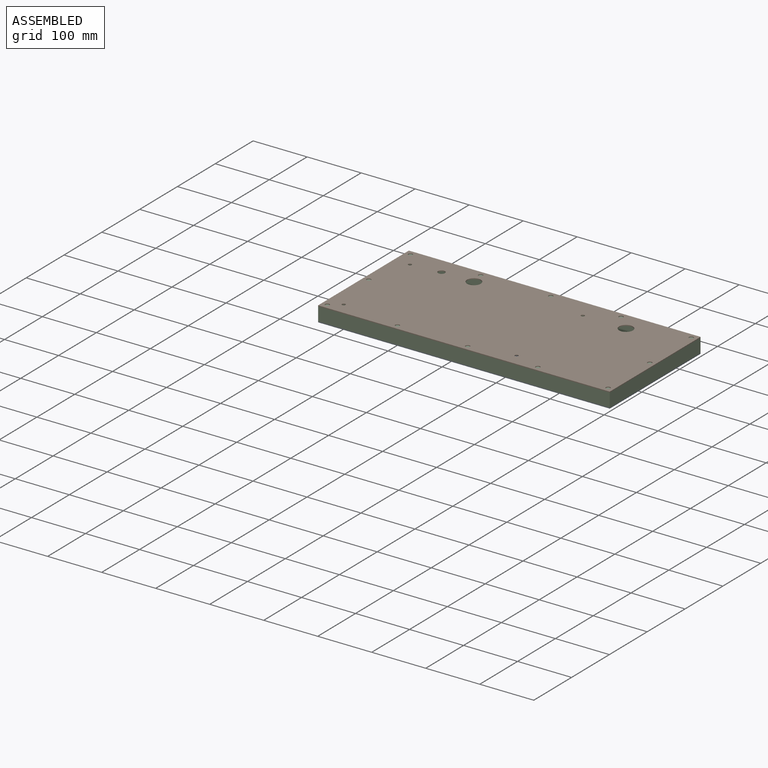
[diagram: assembled view]
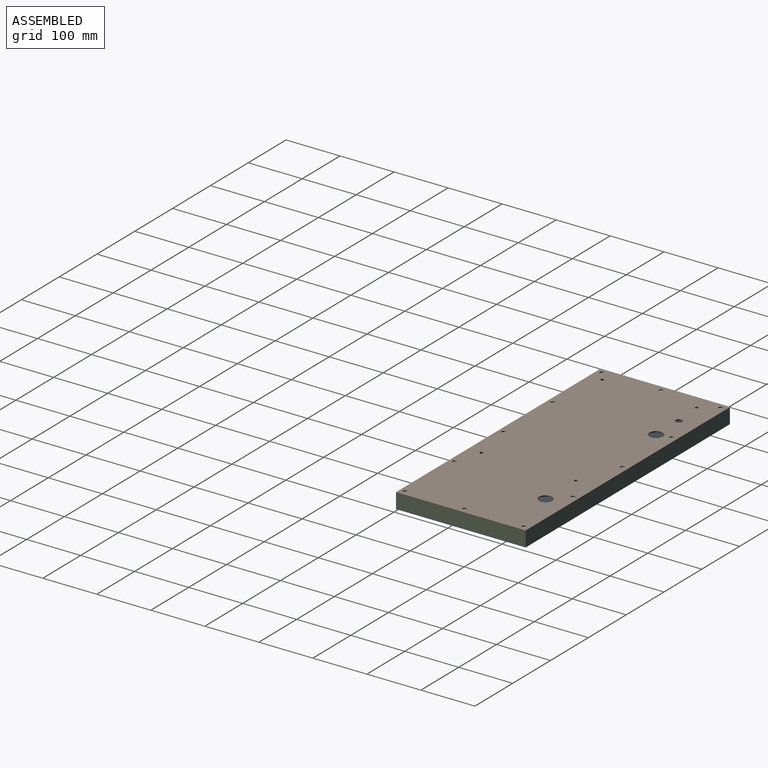
[diagram: assembled view, second angle]
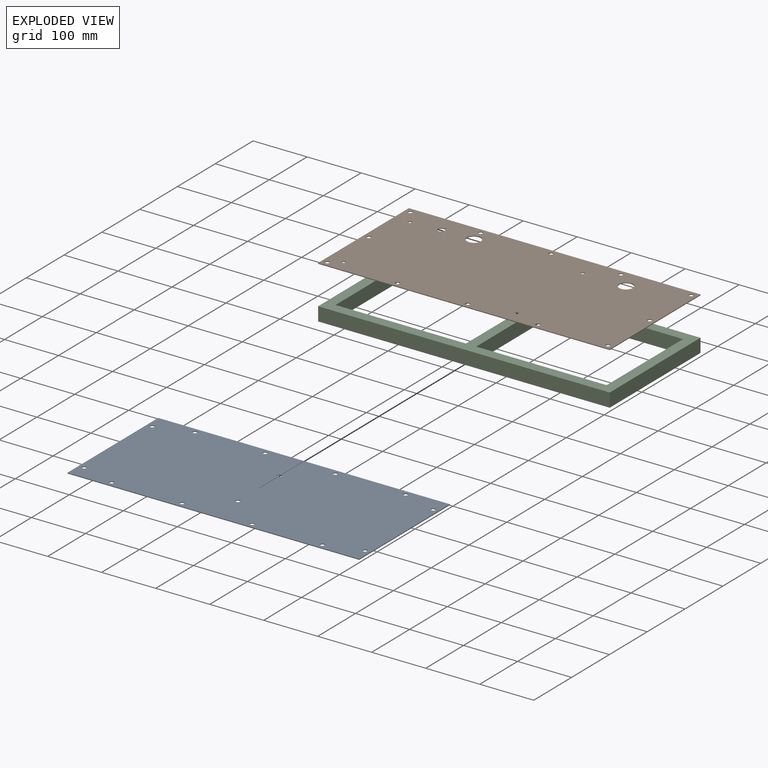
[diagram: exploded view]
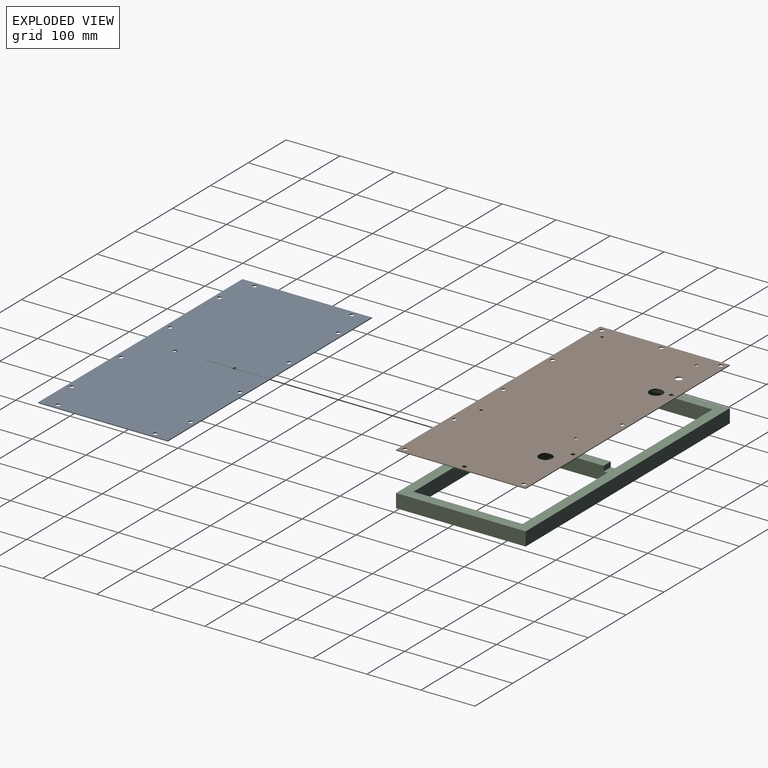
[diagram: exploded view, second angle]
ASSEMBLY  parts=3 mates=6
PART A: 20 faces, bbox 540x240x1.5 mm
  f0: plane 240x1.52mm, normal (1,0,0), area 364.5mm2, adj f1,f16,f18,f19
  f1: plane 540x1.52mm, normal (0,1,0), area 820.2mm2, adj f0,f2,f18,f19
  f2: plane 240x1.52mm, normal (-1,0,0), area 364.5mm2, adj f1,f16,f18,f19
  f3: cylinder r=3.97mm len=7.94mm, axis (0,0,-1), area 37.9mm2, adj f18,f19
  f4: cylinder r=3.97mm len=7.94mm, axis (0,0,-1), area 37.9mm2, adj f18,f19
  f5: cylinder r=3.97mm len=7.94mm, axis (0,0,-1), area 37.9mm2, adj f18,f19
  f6: cylinder r=3.97mm len=7.94mm, axis (0,0,-1), area 37.9mm2, adj f18,f19
  f7: cylinder r=3.97mm len=7.94mm, axis (0,0,-1), area 37.9mm2, adj f18,f19
  f8: cylinder r=3.97mm len=7.94mm, axis (0,0,-1), area 37.9mm2, adj f18,f19
  f9: cylinder r=3.97mm len=7.94mm, axis (0,0,-1), area 37.9mm2, adj f18,f19
  f10: cylinder r=3.97mm len=7.94mm, axis (0,0,-1), area 37.9mm2, adj f18,f19
  f11: cylinder r=3.97mm len=7.94mm, axis (0,0,-1), area 37.9mm2, adj f18,f19
  f12: cylinder r=3.97mm len=7.94mm, axis (0,0,-1), area 37.9mm2, adj f18,f19
  f13: cylinder r=3.97mm len=7.94mm, axis (0,0,-1), area 37.9mm2, adj f18,f19
  f14: cylinder r=3.97mm len=7.94mm, axis (0,0,-1), area 37.9mm2, adj f18,f19
  f15: cylinder r=3.97mm len=7.94mm, axis (0,0,-1), area 37.9mm2, adj f18,f19
  f16: plane 540x1.52mm, normal (0,-1,0), area 820.2mm2, adj f0,f2,f18,f19
  f17: cylinder r=3.97mm len=7.94mm, axis (0,0,-1), area 37.9mm2, adj f18,f19
  f18: plane 540x240mm, normal (0,0,1), area 128907.2mm2, adj f0,f1,f2,f3,f4,f5,f6,f7
  f19: plane 540x240mm, normal (0,0,-1), area 128907.2mm2, adj f0,f1,f2,f3,f4,f5,f6,f7
PART B: 25 faces, bbox 540x240x1.5 mm
  f0: plane 240x1.52mm, normal (1,0,0), area 364.5mm2, adj f1,f5,f7,f8
  f1: plane 540x1.52mm, normal (0,1,0), area 820.2mm2, adj f0,f2,f7,f8
  f2: plane 240x1.52mm, normal (-1,0,0), area 364.5mm2, adj f1,f5,f7,f8
  f3: cylinder r=12.7mm len=25.4mm, axis (0,0,-1), area 121.2mm2, adj f7,f8
  f4: cylinder r=12.7mm len=25.4mm, axis (0,0,-1), area 121.2mm2, adj f7,f8
  f5: plane 540x1.52mm, normal (0,-1,0), area 820.2mm2, adj f0,f2,f7,f8
  f6: cylinder r=6.35mm len=12.7mm, axis (0,0,-1), area 60.6mm2, adj f7,f8
  f7: plane 540x240mm, normal (0,0,1), area 127739.4mm2, adj f0,f1,f2,f3,f4,f5,f6,f9
  f8: plane 540x240mm, normal (0,0,-1), area 127739.4mm2, adj f0,f1,f2,f3,f4,f5,f6,f9
  f9: cylinder r=3.97mm len=7.94mm, axis (0,0,-1), area 37.9mm2, adj f7,f8
  f10: cylinder r=3.97mm len=7.94mm, axis (0,0,-1), area 37.9mm2, adj f7,f8
  f11: cylinder r=3.97mm len=7.94mm, axis (0,0,-1), area 37.9mm2, adj f7,f8
  f12: cylinder r=3.97mm len=7.94mm, axis (0,0,-1), area 37.9mm2, adj f7,f8
  f13: cylinder r=3.97mm len=7.94mm, axis (0,0,-1), area 37.9mm2, adj f7,f8
  f14: cylinder r=3.97mm len=7.94mm, axis (0,0,-1), area 37.9mm2, adj f7,f8
  f15: cylinder r=3.97mm len=7.94mm, axis (0,0,-1), area 37.9mm2, adj f7,f8
  f16: cylinder r=3.97mm len=7.94mm, axis (0,0,-1), area 37.9mm2, adj f7,f8
  f17: cylinder r=3.97mm len=7.94mm, axis (0,0,-1), area 37.9mm2, adj f7,f8
  f18: cylinder r=3.97mm len=7.94mm, axis (0,0,-1), area 37.9mm2, adj f7,f8
  f19: cylinder r=3.97mm len=7.94mm, axis (0,0,-1), area 37.9mm2, adj f7,f8
  f20: cylinder r=3.97mm len=7.94mm, axis (0,0,-1), area 37.9mm2, adj f7,f8
  f21: cylinder r=3.17mm len=6.35mm, axis (0,0,1), area 30.3mm2, adj f7,f8
  f22: cylinder r=3.17mm len=6.35mm, axis (0,0,1), area 30.3mm2, adj f7,f8
  f23: cylinder r=3.17mm len=6.35mm, axis (0,0,1), area 30.3mm2, adj f7,f8
  f24: cylinder r=3.17mm len=6.35mm, axis (0,0,1), area 30.3mm2, adj f7,f8
PART C: 15 faces, bbox 540x240x25.4 mm
  f0: plane 201.9x25.4mm, normal (-1,0,0), area 4946.8mm2, adj f1,f4,f8,f12,f13,f14
  f1: plane 540x240mm, normal (0,0,1), area 31749.7mm2, adj f0,f2,f3,f4,f5,f6,f7,f8
  f2: plane 241.43x25.4mm, normal (0,1,0), area 6132.2mm2, adj f1,f3,f11,f12
  f3: plane 201.9x25.4mm, normal (1,0,0), area 4946.8mm2, adj f1,f2,f4,f12,f13,f14
  f4: plane 501.9x25.4mm, normal (0,-1,0), area 12445.8mm2, adj f0,f1,f3,f9,f11,f12,f14
  f5: plane 240x25.4mm, normal (1,0,0), area 6096mm2, adj f1,f6,f10,f12
  f6: plane 540x25.4mm, normal (0,1,0), area 13716mm2, adj f1,f5,f7,f12
  f7: plane 240x25.4mm, normal (-1,0,0), area 6096mm2, adj f1,f6,f10,f12
  f8: plane 241.43x25.4mm, normal (0,1,0), area 6132.2mm2, adj f0,f1,f9,f12
  f9: plane 201.9x25.4mm, normal (1,0,0), area 5128.3mm2, adj f1,f4,f8,f12
  f10: plane 540x25.4mm, normal (0,-1,0), area 13716mm2, adj f1,f5,f7,f12
  f11: plane 201.9x25.4mm, normal (-1,0,0), area 5128.3mm2, adj f1,f2,f4,f12
  f12: plane 540x240mm, normal (0,0,-1), area 32112.6mm2, adj f0,f2,f3,f4,f5,f6,f7,f8
  f13: plane 19.05x9.53mm, normal (0,1,0), area 181.5mm2, adj f0,f1,f3,f14
  f14: plane 19.05x19.05mm, normal (0,0,1), area 362.9mm2, adj f0,f3,f4,f13
PLACE A t=(-64.78,27.57,83.43)mm
PLACE B t=(-64.78,27.57,110.35)mm
PLACE C t=(-64.78,27.57,84.95)mm fixed
MATE planar B.f8 <-> C.f1  axis (0,0,-1) through (-64.66,26.83,110.35)mm
MATE planar B.f5 <-> C.f10  axis (0,-1,0) through (-64.78,-92.43,111.11)mm
MATE planar A.f16 <-> C.f10  axis (0,-1,0) through (-64.78,-92.43,84.19)mm
MATE planar A.f0 <-> C.f5  axis (1,0,0) through (205.22,27.57,84.19)mm
MATE planar B.f0 <-> C.f5  axis (1,0,0) through (205.22,27.57,111.11)mm
MATE planar A.f18 <-> C.f12  axis (0,0,1) through (-64.78,27.57,84.95)mm
